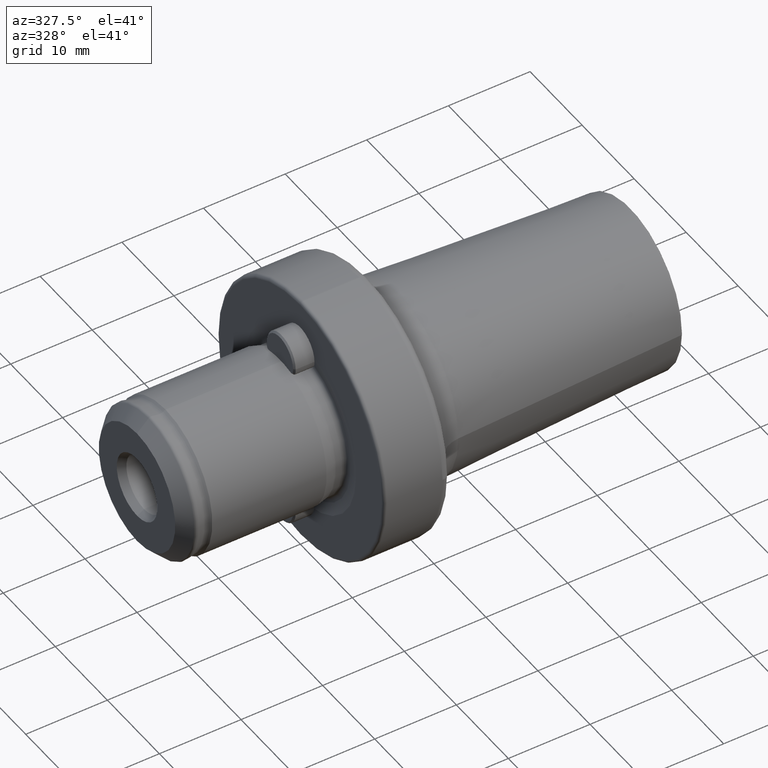
[diagram: clean part render]
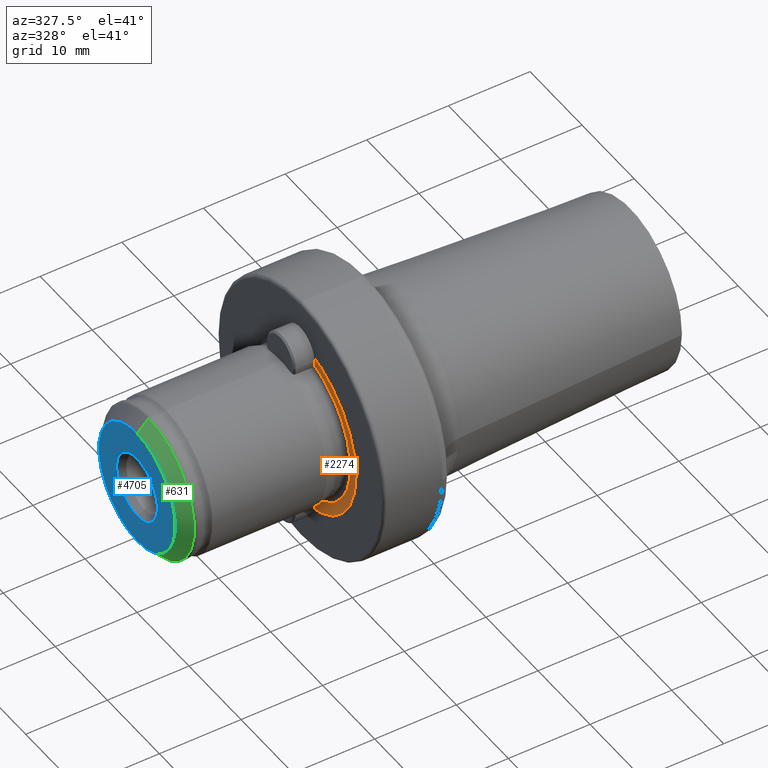
[diagram: same view with three faces highlighted in distinct colors, each labeled with its STEP entity id]
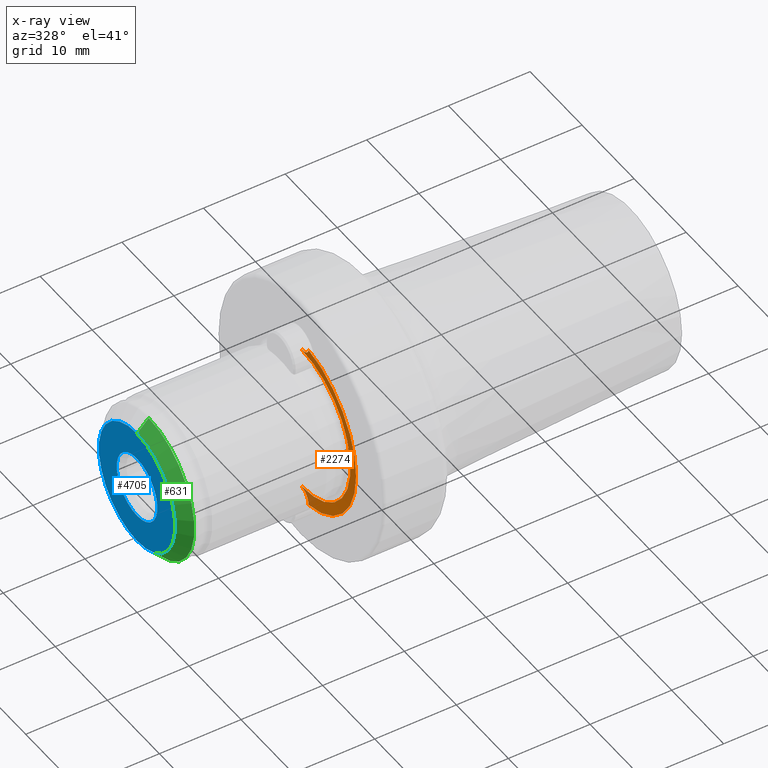
[diagram: x-ray of the same camera — body ghosted, the three highlighted faces saturated]
A machine part, auxiliary view with three faces highlighted in distinct colors.
The next image is the same camera in x-ray (body ghosted, the three faces saturated) — at least one of them is partly hidden behind the body in this view.
Their STEP definitions:

[orange] entity #2274 — the highlighted conical surface has half-angle 82 deg.
#56 = CARTESIAN_POINT ( 'NONE',  ( 0.0000000000000000000, -1.580013975531185700, -10.59789716953961600 ) ) ;
#202 = CIRCLE ( 'NONE', #214, 9.333503860576041000 ) ;
#209 = AXIS2_PLACEMENT_3D ( 'NONE', #3026, #2992, #3148 ) ;
#214 = AXIS2_PLACEMENT_3D ( 'NONE', #3932, #3869, #3901 ) ;
#249 = CARTESIAN_POINT ( 'NONE',  ( 0.09478930827642399700, -1.265850409176179500, -9.963836903791360600 ) ) ;
#368 = CARTESIAN_POINT ( 'NONE',  ( 0.1611312963531813000, -0.7018868627563998900, -9.546274168684661300 ) ) ;
#432 = EDGE_CURVE ( 'NONE', #3348, #3278, #4477, .T. ) ;
#519 = CARTESIAN_POINT ( 'NONE',  ( 0.0000000000000000000, -1.580013975531185700, -10.59789716953961600 ) ) ;
#734 = DIRECTION ( 'NONE',  ( 0.0000000000000000000, 0.0000000000000000000, 1.000000000000000000 ) ) ;
#754 = CARTESIAN_POINT ( 'NONE',  ( 0.04887902721174432200, -1.476864235428293900, -10.26163919400884000 ) ) ;
#824 = DIRECTION ( 'NONE',  ( -1.000000000000000000, -0.0000000000000000000, -0.0000000000000000000 ) ) ;
#837 = CARTESIAN_POINT ( 'NONE',  ( 0.0000000000000000000, -5.204170427930421300E-015, 0.0000000000000000000 ) ) ;
#883 = CARTESIAN_POINT ( 'NONE',  ( 0.0000000000000000000, -1.580013975531185900, 10.59789716953961600 ) ) ;
#960 = VERTEX_POINT ( 'NONE', #3669 ) ;
#965 = ORIENTED_EDGE ( 'NONE', *, *, #3011, .F. ) ;
#1041 = CARTESIAN_POINT ( 'NONE',  ( 0.1805253588880856900, -5.203816470560843900E-015, 9.430525358888086600 ) ) ;
#1247 = CARTESIAN_POINT ( 'NONE',  ( 0.1805253588880856900, -4.049618113890182400E-015, -9.430525358888086600 ) ) ;
#1380 = VERTEX_POINT ( 'NONE', #1041 ) ;
#1442 = VERTEX_POINT ( 'NONE', #2510 ) ;
#1614 = DIRECTION ( 'NONE',  ( -0.1391731009600650500, 1.212728620682195500E-016, -0.9902680687415704700 ) ) ;
#1663 = B_SPLINE_CURVE_WITH_KNOTS ( 'NONE', 3,
 ( #3296, #3478, #3234, #3230, #3214, #3211, #3207, #3198 ),
 .UNSPECIFIED., .F., .F.,
 ( 4, 2, 2, 4 ),
 ( 1.438490829617268000E-006, 0.001057076520637364100, 0.001584895535541237500, 0.002112714550445110800 ),
 .UNSPECIFIED. ) ;
#1760 = CONICAL_SURFACE ( 'NONE', #209, 10.71503003164291800, 1.431169986635350700 ) ;
#1935 = CARTESIAN_POINT ( 'NONE',  ( 0.0000000000000000000, -3.891957704828495200E-015, -10.71503003164291800 ) ) ;
#1937 = EDGE_LOOP ( 'NONE', ( #965, #2631, #2569, #2565, #2557, #2512 ) ) ;
#1954 = FACE_OUTER_BOUND ( 'NONE', #1937, .T. ) ;
#2274 = ADVANCED_FACE ( 'NONE', ( #1954 ), #1760, .F. ) ;
#2510 = CARTESIAN_POINT ( 'NONE',  ( 0.1941608412449370700, -4.061145865162029700E-015, -9.333503860576041000 ) ) ;
#2512 = ORIENTED_EDGE ( 'NONE', *, *, #3616, .F. ) ;
#2557 = ORIENTED_EDGE ( 'NONE', *, *, #3748, .T. ) ;
#2565 = ORIENTED_EDGE ( 'NONE', *, *, #3206, .T. ) ;
#2569 = ORIENTED_EDGE ( 'NONE', *, *, #432, .T. ) ;
#2631 = ORIENTED_EDGE ( 'NONE', *, *, #3175, .T. ) ;
#2740 = VERTEX_POINT ( 'NONE', #883 ) ;
#2992 = DIRECTION ( 'NONE',  ( -1.000000000000000000, -0.0000000000000000000, -0.0000000000000000000 ) ) ;
#3011 = EDGE_CURVE ( 'NONE', #1442, #960, #202, .T. ) ;
#3026 = CARTESIAN_POINT ( 'NONE',  ( 0.0000000000000000000, -5.204170427930421300E-015, 0.0000000000000000000 ) ) ;
#3148 = DIRECTION ( 'NONE',  ( 0.0000000000000000000, 0.0000000000000000000, 1.000000000000000000 ) ) ;
#3175 = EDGE_CURVE ( 'NONE', #1442, #3348, #3644, .T. ) ;
#3198 = CARTESIAN_POINT ( 'NONE',  ( 0.1805253588880856900, -5.203816470560843900E-015, 9.430525358888086600 ) ) ;
#3206 = EDGE_CURVE ( 'NONE', #3278, #2740, #4825, .T. ) ;
#3207 = CARTESIAN_POINT ( 'NONE',  ( 0.1805253588880857100, -0.1769918162793637500, 9.430525358888088400 ) ) ;
#3211 = CARTESIAN_POINT ( 'NONE',  ( 0.1758962030670202000, -0.3505248720032231900, 9.458408769205426800 ) ) ;
#3214 = CARTESIAN_POINT ( 'NONE',  ( 0.1577182909258664500, -0.6870624281095384400, 9.569592266780485800 ) ) ;
#3230 = CARTESIAN_POINT ( 'NONE',  ( 0.1446418098864719100, -0.8420986537019910000, 9.650058976591164800 ) ) ;
#3234 = CARTESIAN_POINT ( 'NONE',  ( 0.09453534595802824700, -1.267935084900834400, 9.965438522300605200 ) ) ;
#3278 = VERTEX_POINT ( 'NONE', #56 ) ;
#3296 = CARTESIAN_POINT ( 'NONE',  ( 0.0000000000000000000, -1.580013975531185900, 10.59789716953961600 ) ) ;
#3348 = VERTEX_POINT ( 'NONE', #4690 ) ;
#3478 = CARTESIAN_POINT ( 'NONE',  ( 0.04891719040552861000, -1.476783699383594800, 10.26137665444915800 ) ) ;
#3605 = DIRECTION ( 'NONE',  ( -0.1391731009600650500, 0.0000000000000000000, 0.9902680687415704700 ) ) ;
#3616 = EDGE_CURVE ( 'NONE', #960, #1380, #4408, .T. ) ;
#3644 = LINE ( 'NONE', #1935, #4526 ) ;
#3669 = CARTESIAN_POINT ( 'NONE',  ( 0.1941608412449370700, -5.204170427930421300E-015, 9.333503860576041000 ) ) ;
#3695 = CARTESIAN_POINT ( 'NONE',  ( 0.0000000000000000000, -5.204170427930421300E-015, 10.71503003164291800 ) ) ;
#3748 = EDGE_CURVE ( 'NONE', #2740, #1380, #1663, .T. ) ;
#3869 = DIRECTION ( 'NONE',  ( -1.000000000000000000, -0.0000000000000000000, -0.0000000000000000000 ) ) ;
#3901 = DIRECTION ( 'NONE',  ( 0.0000000000000000000, 0.0000000000000000000, 1.000000000000000000 ) ) ;
#3932 = CARTESIAN_POINT ( 'NONE',  ( 0.1941608412449370700, -5.204170427930421300E-015, 0.0000000000000000000 ) ) ;
#4408 = LINE ( 'NONE', #3695, #4820 ) ;
#4477 = B_SPLINE_CURVE_WITH_KNOTS ( 'NONE', 3,
 ( #1247, #4858, #368, #249, #754, #519 ),
 .UNSPECIFIED., .F., .F.,
 ( 4, 2, 4 ),
 ( 0.002112714550445118700, 0.003167497330782818700, 0.004222280111120519200 ),
 .UNSPECIFIED. ) ;
#4526 = VECTOR ( 'NONE', #1614, 999.9999999999998900 ) ;
#4690 = CARTESIAN_POINT ( 'NONE',  ( 0.1805253588880856900, -4.049618113890182400E-015, -9.430525358888086600 ) ) ;
#4820 = VECTOR ( 'NONE', #3605, 999.9999999999998900 ) ;
#4825 = CIRCLE ( 'NONE', #4903, 10.71503003164291800 ) ;
#4858 = CARTESIAN_POINT ( 'NONE',  ( 0.1805253588880856000, -0.3536968445635913500, -9.430525358888086600 ) ) ;
#4903 = AXIS2_PLACEMENT_3D ( 'NONE', #837, #824, #734 ) ;

[blue] entity #4705 — the highlighted planar face has unit normal (1, 0, 0).
#832 = DIRECTION ( 'NONE',  ( 0.0000000000000000000, 0.0000000000000000000, 1.000000000000000000 ) ) ;
#848 = DIRECTION ( 'NONE',  ( -1.000000000000000000, -0.0000000000000000000, -0.0000000000000000000 ) ) ;
#853 = CARTESIAN_POINT ( 'NONE',  ( -20.00000000000000400, -5.204170427930421300E-015, 0.0000000000000000000 ) ) ;
#1019 = FACE_BOUND ( 'NONE', #1961, .T. ) ;
#1078 = FACE_OUTER_BOUND ( 'NONE', #1995, .T. ) ;
#1093 = AXIS2_PLACEMENT_3D ( 'NONE', #5007, #5003, #4996 ) ;
#1099 = EDGE_CURVE ( 'NONE', #2138, #3930, #3967, .T. ) ;
#1109 = CARTESIAN_POINT ( 'NONE',  ( -20.00000000000000400, -5.204170427930421300E-015, 0.0000000000000000000 ) ) ;
#1274 = DIRECTION ( 'NONE',  ( -1.000000000000000000, -0.0000000000000000000, -0.0000000000000000000 ) ) ;
#1611 = EDGE_CURVE ( 'NONE', #3930, #2138, #3412, .T. ) ;
#1673 = AXIS2_PLACEMENT_3D ( 'NONE', #3705, #3536, #3520 ) ;
#1694 = EDGE_CURVE ( 'NONE', #2187, #3454, #3246, .T. ) ;
#1747 = AXIS2_PLACEMENT_3D ( 'NONE', #853, #848, #832 ) ;
#1911 = ORIENTED_EDGE ( 'NONE', *, *, #1694, .T. ) ;
#1955 = AXIS2_PLACEMENT_3D ( 'NONE', #1109, #1274, #2987 ) ;
#1961 = EDGE_LOOP ( 'NONE', ( #4546, #2420 ) ) ;
#1992 = EDGE_CURVE ( 'NONE', #3454, #2187, #2707, .T. ) ;
#1995 = EDGE_LOOP ( 'NONE', ( #2852, #1911 ) ) ;
#2138 = VERTEX_POINT ( 'NONE', #3908 ) ;
#2187 = VERTEX_POINT ( 'NONE', #3594 ) ;
#2420 = ORIENTED_EDGE ( 'NONE', *, *, #1099, .F. ) ;
#2655 = AXIS2_PLACEMENT_3D ( 'NONE', #4215, #4183, #4236 ) ;
#2707 = CIRCLE ( 'NONE', #1093, 7.350000000000004100 ) ;
#2710 = CARTESIAN_POINT ( 'NONE',  ( -20.00000000000000400, -5.204170427930421300E-015, 3.900000000000000800 ) ) ;
#2852 = ORIENTED_EDGE ( 'NONE', *, *, #1992, .T. ) ;
#2987 = DIRECTION ( 'NONE',  ( 0.0000000000000000000, 0.0000000000000000000, 1.000000000000000000 ) ) ;
#3246 = CIRCLE ( 'NONE', #1747, 7.350000000000004100 ) ;
#3412 = CIRCLE ( 'NONE', #1955, 3.900000000000000800 ) ;
#3454 = VERTEX_POINT ( 'NONE', #4283 ) ;
#3520 = DIRECTION ( 'NONE',  ( 0.0000000000000000000, 0.0000000000000000000, -1.000000000000000000 ) ) ;
#3536 = DIRECTION ( 'NONE',  ( 1.000000000000000000, 0.0000000000000000000, 0.0000000000000000000 ) ) ;
#3594 = CARTESIAN_POINT ( 'NONE',  ( -20.00000000000000400, -4.216318718481433400E-015, 7.350000000000004100 ) ) ;
#3705 = CARTESIAN_POINT ( 'NONE',  ( -20.00000000000000400, -5.204170427930421300E-015, -3.900000000000000800 ) ) ;
#3802 = PLANE ( 'NONE',  #1673 ) ;
#3908 = CARTESIAN_POINT ( 'NONE',  ( -20.00000000000000400, -4.726558176262953300E-015, -3.900000000000000800 ) ) ;
#3930 = VERTEX_POINT ( 'NONE', #2710 ) ;
#3967 = CIRCLE ( 'NONE', #2655, 3.900000000000000800 ) ;
#4183 = DIRECTION ( 'NONE',  ( -1.000000000000000000, -0.0000000000000000000, -0.0000000000000000000 ) ) ;
#4215 = CARTESIAN_POINT ( 'NONE',  ( -20.00000000000000400, -5.204170427930421300E-015, 0.0000000000000000000 ) ) ;
#4236 = DIRECTION ( 'NONE',  ( 0.0000000000000000000, 0.0000000000000000000, 1.000000000000000000 ) ) ;
#4283 = CARTESIAN_POINT ( 'NONE',  ( -20.00000000000000400, -5.204170427930421300E-015, -7.350000000000004100 ) ) ;
#4546 = ORIENTED_EDGE ( 'NONE', *, *, #1611, .F. ) ;
#4705 = ADVANCED_FACE ( 'NONE', ( #1019, #1078 ), #3802, .F. ) ;
#4996 = DIRECTION ( 'NONE',  ( 0.0000000000000000000, 0.0000000000000000000, 1.000000000000000000 ) ) ;
#5003 = DIRECTION ( 'NONE',  ( -1.000000000000000000, -0.0000000000000000000, -0.0000000000000000000 ) ) ;
#5007 = CARTESIAN_POINT ( 'NONE',  ( -20.00000000000000400, -5.204170427930421300E-015, 0.0000000000000000000 ) ) ;

[green] entity #631 — the highlighted conical surface has half-angle 45 deg.
#569 = ORIENTED_EDGE ( 'NONE', *, *, #1340, .T. ) ;
#631 = ADVANCED_FACE ( 'NONE', ( #4789 ), #4617, .T. ) ;
#708 = DIRECTION ( 'NONE',  ( 0.0000000000000000000, 0.0000000000000000000, -1.000000000000000000 ) ) ;
#741 = DIRECTION ( 'NONE',  ( 1.000000000000000000, 0.0000000000000000000, 0.0000000000000000000 ) ) ;
#827 = CARTESIAN_POINT ( 'NONE',  ( -18.56715728752537900, -5.204170427930421300E-015, 0.0000000000000000000 ) ) ;
#991 = CARTESIAN_POINT ( 'NONE',  ( -18.56715728752537900, -4.128582406405751000E-015, 8.782842712474620200 ) ) ;
#1093 = AXIS2_PLACEMENT_3D ( 'NONE', #5007, #5003, #4996 ) ;
#1127 = ORIENTED_EDGE ( 'NONE', *, *, #1623, .F. ) ;
#1340 = EDGE_CURVE ( 'NONE', #3454, #3181, #3798, .T. ) ;
#1623 = EDGE_CURVE ( 'NONE', #2187, #3327, #3353, .T. ) ;
#1742 = ORIENTED_EDGE ( 'NONE', *, *, #1992, .F. ) ;
#1799 = DIRECTION ( 'NONE',  ( 0.7071067811865496800, 0.0000000000000000000, -0.7071067811865453500 ) ) ;
#1819 = CARTESIAN_POINT ( 'NONE',  ( -18.56715728752537900, -5.204170427930421300E-015, -8.782842712474620200 ) ) ;
#1992 = EDGE_CURVE ( 'NONE', #3454, #2187, #2707, .T. ) ;
#2187 = VERTEX_POINT ( 'NONE', #3594 ) ;
#2324 = CARTESIAN_POINT ( 'NONE',  ( -18.56715728752537900, -4.121408591547513500E-015, -8.782842712474620200 ) ) ;
#2622 = ORIENTED_EDGE ( 'NONE', *, *, #3885, .T. ) ;
#2707 = CIRCLE ( 'NONE', #1093, 7.350000000000004100 ) ;
#2821 = DIRECTION ( 'NONE',  ( 0.0000000000000000000, 0.0000000000000000000, 1.000000000000000000 ) ) ;
#2827 = DIRECTION ( 'NONE',  ( -1.000000000000000000, -0.0000000000000000000, -0.0000000000000000000 ) ) ;
#2830 = CARTESIAN_POINT ( 'NONE',  ( -18.56715728752537900, -5.204170427930421300E-015, 0.0000000000000000000 ) ) ;
#2967 = DIRECTION ( 'NONE',  ( 0.7071067811865496800, 8.659560562354907000E-017, 0.7071067811865453500 ) ) ;
#3017 = EDGE_LOOP ( 'NONE', ( #1127, #1742, #569, #2622 ) ) ;
#3181 = VERTEX_POINT ( 'NONE', #2324 ) ;
#3307 = VECTOR ( 'NONE', #2967, 1000.000000000000000 ) ;
#3327 = VERTEX_POINT ( 'NONE', #4818 ) ;
#3353 = LINE ( 'NONE', #991, #3307 ) ;
#3454 = VERTEX_POINT ( 'NONE', #4283 ) ;
#3594 = CARTESIAN_POINT ( 'NONE',  ( -20.00000000000000400, -4.216318718481433400E-015, 7.350000000000004100 ) ) ;
#3700 = VECTOR ( 'NONE', #1799, 1000.000000000000000 ) ;
#3798 = LINE ( 'NONE', #1819, #3700 ) ;
#3885 = EDGE_CURVE ( 'NONE', #3181, #3327, #4001, .T. ) ;
#3971 = AXIS2_PLACEMENT_3D ( 'NONE', #827, #741, #708 ) ;
#4001 = CIRCLE ( 'NONE', #4869, 8.782842712474620200 ) ;
#4283 = CARTESIAN_POINT ( 'NONE',  ( -20.00000000000000400, -5.204170427930421300E-015, -7.350000000000004100 ) ) ;
#4617 = CONICAL_SURFACE ( 'NONE', #3971, 8.782842712474620200, 0.7853981633974452800 ) ;
#4789 = FACE_OUTER_BOUND ( 'NONE', #3017, .T. ) ;
#4818 = CARTESIAN_POINT ( 'NONE',  ( -18.56715728752537900, -5.204170427930421300E-015, 8.782842712474620200 ) ) ;
#4869 = AXIS2_PLACEMENT_3D ( 'NONE', #2830, #2827, #2821 ) ;
#4996 = DIRECTION ( 'NONE',  ( 0.0000000000000000000, 0.0000000000000000000, 1.000000000000000000 ) ) ;
#5003 = DIRECTION ( 'NONE',  ( -1.000000000000000000, -0.0000000000000000000, -0.0000000000000000000 ) ) ;
#5007 = CARTESIAN_POINT ( 'NONE',  ( -20.00000000000000400, -5.204170427930421300E-015, 0.0000000000000000000 ) ) ;